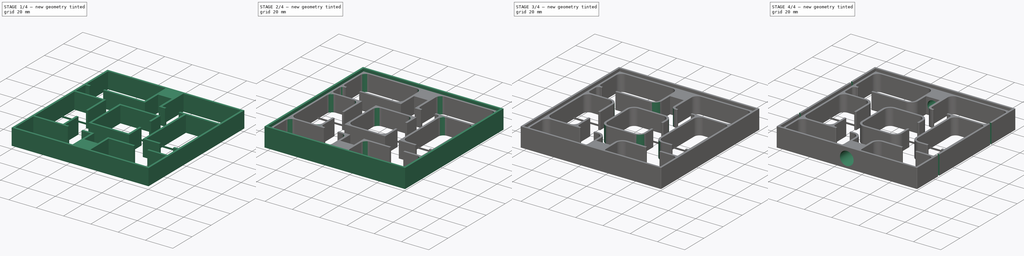
[diagram: build sequence overview — one tinted view per stage of 4, left to right]
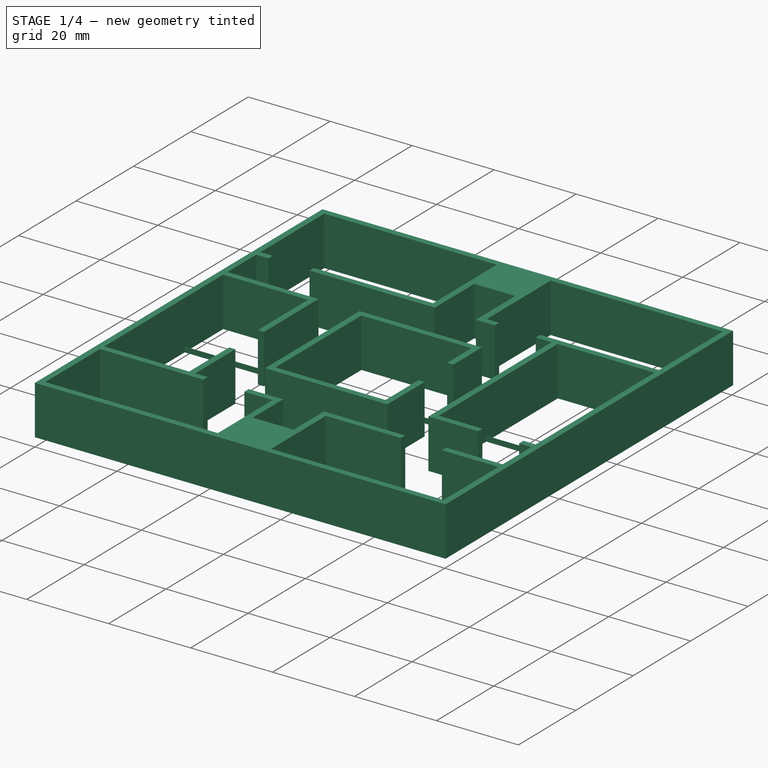
[diagram: stage 1 of 4 — iso view after this stage's code; geometry added in this stage tinted green]
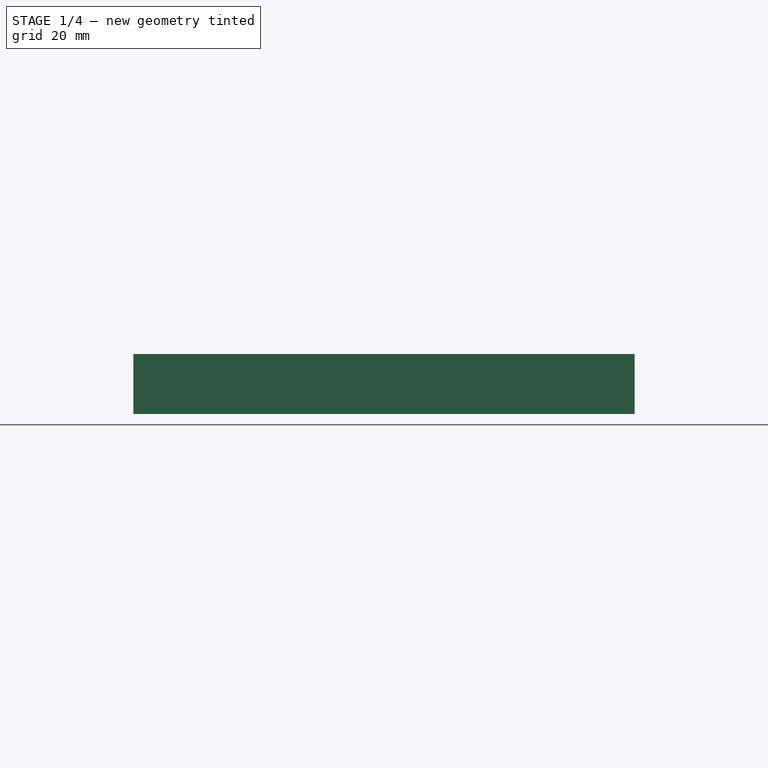
[diagram: stage 1 of 4 — front view after this stage's code; geometry added in this stage tinted green]
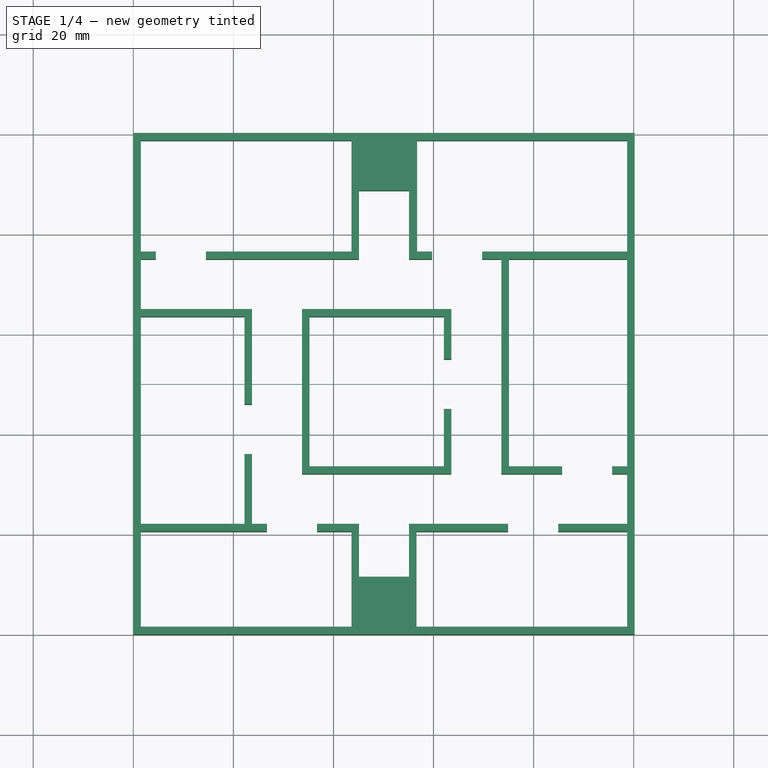
[diagram: stage 1 of 4 — top view after this stage's code; geometry added in this stage tinted green]
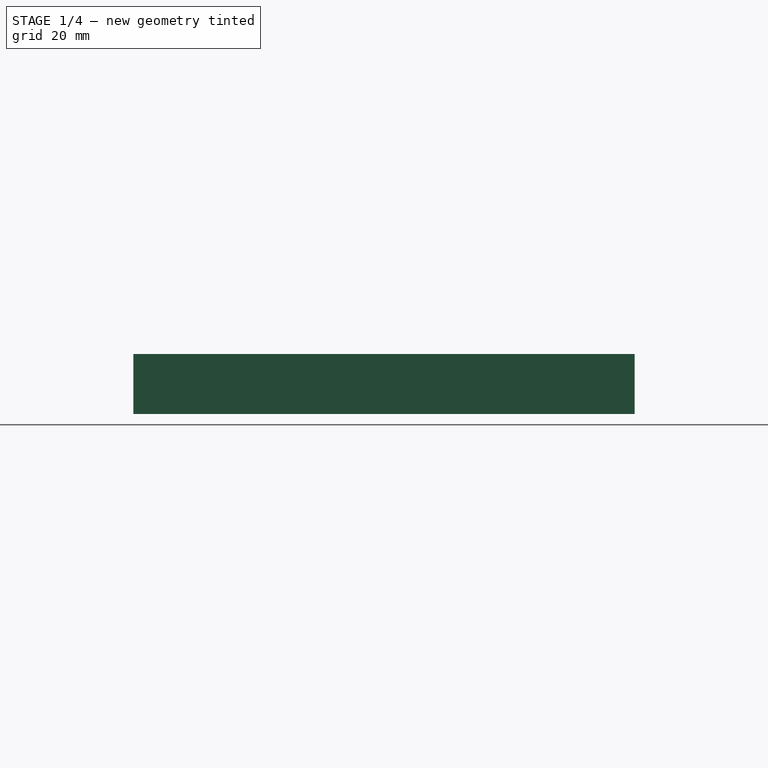
[diagram: stage 1 of 4 — right view after this stage's code; geometry added in this stage tinted green]
FCSTD DOCUMENT  (FreeCAD 0.18R13674 (Git))
Label: test3
License: All rights reserved
LicenseURL: http://en.wikipedia.org/wiki/All_rights_reserved
objects: Sketcher::SketchObject×7, PartDesign::Fillet×5, PartDesign::Pad×4, PartDesign::Hole×2, PartDesign::Pocket×1, PartDesign::Body×1
note: 27 computed .brp shape members not serialized (recipe doc carries the construction recipe); baked Part::Feature solids carry a one-line shape summary decoded from their .brp

FEATURE [Sketcher::SketchObject] Sketch  label="base"
  MapMode = 5
  Support = -> [XY_Plane]
  sketch-geometry (8):
    g0: LineSegment [constr] StartX=0 StartY=0 StartZ=0 EndX=100.2 EndY=0 EndZ=0
    g1: LineSegment [constr] StartX=100.2 StartY=0 StartZ=0 EndX=100.2 EndY=100.2 EndZ=0
    g2: LineSegment [constr] StartX=100.2 StartY=100.2 StartZ=0 EndX=0 EndY=100.2 EndZ=0
    g3: LineSegment [constr] StartX=0 StartY=100.2 StartZ=0 EndX=0 EndY=0 EndZ=0
    g4: LineSegment StartX=0 StartY=50.15 StartZ=0 EndX=100.2 EndY=50.15 EndZ=0
    g5: LineSegment StartX=100.2 StartY=50.15 StartZ=0 EndX=100.2 EndY=50.05 EndZ=0
    g6: LineSegment StartX=100.2 StartY=50.05 StartZ=0 EndX=0 EndY=50.05 EndZ=0
    g7: LineSegment StartX=0 StartY=50.05 StartZ=0 EndX=0 EndY=50.15 EndZ=0
  constraints (23):
    c: Coincident(g0,g1)
    c: Coincident(g1,g2)
    c: Coincident(g2,g3)
    c: Coincident(g3,g0)
    c: Horizontal(g0)
    c: Horizontal(g2)
    c: Vertical(g1)
    c: Vertical(g3)
    c: Coincident(g0,g-1)
    c: Distance(g1) = 100.2
    c: Distance(g0) = 100.2
    c: Coincident(g4,g5)
    c: Coincident(g5,g6)
    c: Coincident(g6,g7)
    c: Coincident(g7,g4)
    c: Horizontal(g4)
    c: Horizontal(g6)
    c: Vertical(g5)
    c: Vertical(g7)
    c: PointOnObject(g4,g3)
    c: PointOnObject(g5,g1)
    c: Distance(g-1,g6) = 50.05
    c: Distance(g7) = 0.1
FEATURE [PartDesign::Pad] Pad  label="Base"
  Length = 1.25
  Length2 = 100
  Profile = -> Sketch
  Type = 0
FEATURE [Sketcher::SketchObject] Sketch001  label="chambers"
  ExternalGeometry = -> [Sketch]
  MapMode = 5
  Support = -> [XY_Plane]
  sketch-geometry (119):
    g0: LineSegment [constr] StartX=45.0996 StartY=74.9876 StartZ=0 EndX=98.7 EndY=74.9876 EndZ=0
    g1: LineSegment [constr] StartX=98.7 StartY=74.9876 StartZ=0 EndX=98.7 EndY=33.5565 EndZ=0
    g2: LineSegment [constr] StartX=58.9283 StartY=98.7 StartZ=0 EndX=98.7 EndY=98.7 EndZ=0
    g3: LineSegment [constr] StartX=98.7 StartY=98.7 StartZ=0 EndX=98.7 EndY=59.3012 EndZ=0
    g4: LineSegment [constr] StartX=50.0996 StartY=100 StartZ=0 EndX=50.0996 EndY=76.0527 EndZ=0
    g5: LineSegment StartX=0 StartY=0 StartZ=0 EndX=100.2 EndY=0 EndZ=0
    g6: LineSegment StartX=100.2 StartY=0 StartZ=0 EndX=100.2 EndY=100.2 EndZ=0
    g7: LineSegment StartX=100.2 StartY=100.2 StartZ=0 EndX=0 EndY=100.2 EndZ=0
    g8: LineSegment StartX=0 StartY=100.2 StartZ=0 EndX=0 EndY=0 EndZ=0
    g9: LineSegment [constr] StartX=0 StartY=1.5 StartZ=0 EndX=1.5 EndY=1.5 EndZ=0
    g10: LineSegment [constr] StartX=1.5 StartY=1.5 StartZ=0 EndX=1.5 EndY=0 EndZ=0
    g11: LineSegment [constr] StartX=98.7 StartY=100.2 StartZ=0 EndX=98.7 EndY=98.7 EndZ=0
    g12: LineSegment [constr] StartX=98.7 StartY=98.7 StartZ=0 EndX=100.2 EndY=98.7 EndZ=0
    g13: LineSegment [constr] StartX=1.5 StartY=1.5 StartZ=0 EndX=98.7 EndY=1.5 EndZ=0
    g14: LineSegment [constr] StartX=98.7 StartY=1.5 StartZ=0 EndX=98.7 EndY=98.7 EndZ=0
    g15: LineSegment [constr] StartX=98.7 StartY=98.7 StartZ=0 EndX=1.5 EndY=98.7 EndZ=0
    g16: LineSegment [constr] StartX=1.5 StartY=98.7 StartZ=0 EndX=1.5 EndY=1.5 EndZ=0
    g17: LineSegment [constr] StartX=50.1 StartY=0 StartZ=0 EndX=50.1 EndY=23.7426 EndZ=0
    g18: LineSegment [constr] StartX=98.7 StartY=1.5 StartZ=0 EndX=56.5996 EndY=1.5 EndZ=0
    g19: LineSegment [constr] StartX=56.5996 StartY=1.5 StartZ=0 EndX=56.5996 EndY=20.5565 EndZ=0
    g20: LineSegment [constr] StartX=56.5996 StartY=20.5565 StartZ=0 EndX=98.7 EndY=20.5565 EndZ=0
    g21: LineSegment [constr] StartX=98.7 StartY=20.5565 StartZ=0 EndX=98.7 EndY=1.5 EndZ=0
    g22: LineSegment [constr] StartX=1.5 StartY=1.5 StartZ=0 EndX=43.5996 EndY=1.5 EndZ=0
    g23: LineSegment [constr] StartX=43.5996 StartY=1.5 StartZ=0 EndX=43.5996 EndY=20.5565 EndZ=0
    g24: LineSegment [constr] StartX=43.5996 StartY=20.5565 StartZ=0 EndX=1.5 EndY=20.5565 EndZ=0
    g25: LineSegment [constr] StartX=1.5 StartY=20.5565 StartZ=0 EndX=1.5 EndY=1.5 EndZ=0
    g26: LineSegment [constr] StartX=26.7071 StartY=20.5565 StartZ=0 EndX=36.7071 EndY=20.5565 EndZ=0
    g27: LineSegment [constr] StartX=6.5 StartY=22.0565 StartZ=0 EndX=6.5 EndY=20.5565 EndZ=0
    g28: LineSegment StartX=1.5 StartY=98.7 StartZ=0 EndX=43.5996 EndY=98.7 EndZ=0
    g29: LineSegment StartX=43.5996 StartY=98.7 StartZ=0 EndX=43.5996 EndY=76.4876 EndZ=0
    g30: LineSegment StartX=1.5 StartY=76.4876 StartZ=0 EndX=1.5 EndY=98.7 EndZ=0
    g31: LineSegment [constr] StartX=50.0996 StartY=98.7 StartZ=0 EndX=45.0996 EndY=98.7 EndZ=0
    g32: LineSegment [constr] StartX=50.0996 StartY=98.7 StartZ=0 EndX=55.0996 EndY=98.7 EndZ=0
    g33: LineSegment [constr] StartX=45.0996 StartY=98.7 StartZ=0 EndX=45.0996 EndY=88.7 EndZ=0
    g34: LineSegment StartX=45.0996 StartY=88.7 StartZ=0 EndX=55.0996 EndY=88.7 EndZ=0
    g35: LineSegment [constr] StartX=55.0996 StartY=88.7 StartZ=0 EndX=55.0996 EndY=98.7 EndZ=0
    g36: LineSegment [constr] StartX=45.0996 StartY=95.9558 StartZ=0 EndX=43.5996 EndY=95.9558 EndZ=0
    g37: LineSegment StartX=45.0996 StartY=88.7 StartZ=0 EndX=45.0996 EndY=74.9876 EndZ=0
    g38: LineSegment StartX=45.0996 StartY=74.9876 StartZ=0 EndX=14.5 EndY=74.9876 EndZ=0
    g39: LineSegment [constr] StartX=43.5996 StartY=76.4876 StartZ=0 EndX=43.5996 EndY=74.9876 EndZ=0
    g40: LineSegment StartX=1.5 StartY=76.4876 StartZ=0 EndX=4.5 EndY=76.4876 EndZ=0
    g41: LineSegment [constr] StartX=4.5 StartY=76.4876 StartZ=0 EndX=14.5 EndY=76.4876 EndZ=0
    g42: LineSegment StartX=43.5996 StartY=76.4876 StartZ=0 EndX=14.5 EndY=76.4876 EndZ=0
    g43: LineSegment StartX=14.5 StartY=74.9876 StartZ=0 EndX=14.5 EndY=76.4876 EndZ=0
    g44: LineSegment StartX=1.5 StartY=64.9876 StartZ=0 EndX=23.7071 EndY=64.9876 EndZ=0
    g45: LineSegment [constr] StartX=23.7071 StartY=64.9876 StartZ=0 EndX=33.7071 EndY=64.9876 EndZ=0
    g46: LineSegment [constr] StartX=14.5 StartY=74.9876 StartZ=0 EndX=14.5 EndY=64.9876 EndZ=0
    g47: LineSegment StartX=98.7 StartY=98.7 StartZ=0 EndX=56.7128 EndY=98.7 EndZ=0
    g48: LineSegment [constr] StartX=56.7128 StartY=98.7 StartZ=0 EndX=56.7128 EndY=76.4876 EndZ=0
    g49: LineSegment StartX=98.7 StartY=76.4876 StartZ=0 EndX=98.7 EndY=98.7 EndZ=0
    g50: LineSegment StartX=55.0996 StartY=88.7 StartZ=0 EndX=55.0996 EndY=74.9876 EndZ=0
    g51: LineSegment StartX=56.7128 StartY=76.4876 StartZ=0 EndX=56.7128 EndY=98.7 EndZ=0
    g52: LineSegment [constr] StartX=14.5 StartY=64.9876 StartZ=0 EndX=14.5 EndY=63.4876 EndZ=0
    g53: LineSegment StartX=22.2071 StartY=63.4876 StartZ=0 EndX=1.5 EndY=63.4876 EndZ=0
    g54: LineSegment StartX=1.5 StartY=63.4876 StartZ=0 EndX=1.5 EndY=22.0565 EndZ=0
    g55: LineSegment StartX=1.5 StartY=22.0565 StartZ=0 EndX=22.2071 EndY=22.0565 EndZ=0
    g56: LineSegment [constr] StartX=22.2071 StartY=22.0565 StartZ=0 EndX=22.2071 EndY=63.4876 EndZ=0
    g57: LineSegment StartX=23.7071 StartY=64.9876 StartZ=0 EndX=23.7071 EndY=45.9907 EndZ=0
    g58: LineSegment StartX=22.2071 StartY=63.4876 StartZ=0 EndX=22.2071 EndY=45.9907 EndZ=0
    g59: LineSegment [constr] StartX=22.2071 StartY=45.9907 StartZ=0 EndX=22.2071 EndY=35.9907 EndZ=0
    g60: LineSegment StartX=22.2071 StartY=35.9907 StartZ=0 EndX=22.2071 EndY=22.0565 EndZ=0
    g61: LineSegment StartX=23.7071 StartY=45.9907 StartZ=0 EndX=22.2071 EndY=45.9907 EndZ=0
    g62: LineSegment StartX=22.2071 StartY=35.9907 StartZ=0 EndX=23.7071 EndY=35.9907 EndZ=0
    g63: LineSegment StartX=1.5 StartY=20.5565 StartZ=0 EndX=26.7071 EndY=20.5565 EndZ=0
    g64: LineSegment StartX=1.5 StartY=20.5565 StartZ=0 EndX=1.5 EndY=1.5 EndZ=0
    g65: LineSegment StartX=43.5996 StartY=1.5 StartZ=0 EndX=1.5 EndY=1.5 EndZ=0
    g66: LineSegment StartX=43.5996 StartY=1.5 StartZ=0 EndX=43.5996 EndY=20.5565 EndZ=0
    g67: LineSegment StartX=36.7071 StartY=20.5565 StartZ=0 EndX=43.5996 EndY=20.5565 EndZ=0
    g68: LineSegment StartX=36.7071 StartY=20.5565 StartZ=0 EndX=36.7071 EndY=22.0565 EndZ=0
    g69: LineSegment StartX=36.7071 StartY=22.0565 StartZ=0 EndX=45.0996 EndY=22.0565 EndZ=0
    g70: LineSegment StartX=45.0996 StartY=11.5 StartZ=0 EndX=45.0996 EndY=22.0565 EndZ=0
    g71: LineSegment [constr] StartX=45.0996 StartY=11.5 StartZ=0 EndX=45.0996 EndY=1.5 EndZ=0
    g72: LineSegment [constr] StartX=45.0996 StartY=11.5 StartZ=0 EndX=43.5996 EndY=11.5 EndZ=0
    g73: LineSegment StartX=45.0996 StartY=11.5 StartZ=0 EndX=55.0996 EndY=11.5 EndZ=0
    g74: LineSegment [constr] StartX=55.0996 StartY=11.5 StartZ=0 EndX=56.5996 EndY=11.5 EndZ=0
    g75: LineSegment StartX=55.0996 StartY=22.0565 StartZ=0 EndX=55.0996 EndY=11.5 EndZ=0
    g76: LineSegment StartX=74.9196 StartY=22.0565 StartZ=0 EndX=55.0996 EndY=22.0565 EndZ=0
    g77: LineSegment [constr] StartX=56.5996 StartY=20.5565 StartZ=0 EndX=56.5996 EndY=22.0565 EndZ=0
    g78: LineSegment StartX=56.5996 StartY=1.5 StartZ=0 EndX=56.5996 EndY=20.5565 EndZ=0
    g79: LineSegment StartX=56.5996 StartY=20.5565 StartZ=0 EndX=74.9196 EndY=20.5565 EndZ=0
    g80: LineSegment [constr] StartX=74.9196 StartY=20.5565 StartZ=0 EndX=84.9196 EndY=20.5565 EndZ=0
    g81: LineSegment StartX=84.9196 StartY=20.5565 StartZ=0 EndX=98.7 EndY=20.5565 EndZ=0
    g82: LineSegment StartX=74.9196 StartY=22.0565 StartZ=0 EndX=74.9196 EndY=20.5565 EndZ=0
    g83: LineSegment StartX=84.9196 StartY=22.0565 StartZ=0 EndX=84.9196 EndY=20.5565 EndZ=0
    g84: LineSegment StartX=98.7 StartY=33.5565 StartZ=0 EndX=95.7 EndY=33.5565 EndZ=0
    g85: LineSegment StartX=98.7 StartY=22.0565 StartZ=0 EndX=84.9196 EndY=22.0565 EndZ=0
    g86: LineSegment [constr] StartX=33.7071 StartY=22.0565 StartZ=0 EndX=33.7071 EndY=32.0565 EndZ=0
    g87: LineSegment StartX=85.7 StartY=33.5565 StartZ=0 EndX=85.7 EndY=32.0565 EndZ=0
    g88: LineSegment StartX=98.7 StartY=33.5565 StartZ=0 EndX=98.7 EndY=74.9876 EndZ=0
    g89: LineSegment [constr] StartX=85.7 StartY=32.0565 StartZ=0 EndX=95.7 EndY=32.0565 EndZ=0
    g90: LineSegment StartX=56.5996 StartY=1.5 StartZ=0 EndX=98.7 EndY=1.5 EndZ=0
    g91: LineSegment StartX=98.7 StartY=1.5 StartZ=0 EndX=98.7 EndY=20.5565 EndZ=0
    g92: LineSegment [constr] StartX=63.5711 StartY=32.0565 StartZ=0 EndX=73.5711 EndY=32.0565 EndZ=0
    g93: LineSegment [constr] StartX=33.7071 StartY=64.9876 StartZ=0 EndX=63.5711 EndY=64.9876 EndZ=0
    g94: LineSegment [constr] StartX=63.5711 StartY=64.9876 StartZ=0 EndX=63.5711 EndY=32.0565 EndZ=0
    g95: LineSegment [constr] StartX=63.5711 StartY=32.0565 StartZ=0 EndX=33.7071 EndY=32.0565 EndZ=0
    g96: LineSegment StartX=73.5711 StartY=32.0565 StartZ=0 EndX=85.7 EndY=32.0565 EndZ=0
    g97: LineSegment StartX=73.5711 StartY=74.9876 StartZ=0 EndX=73.5711 EndY=32.0565 EndZ=0
    g98: LineSegment StartX=75.0711 StartY=74.9876 StartZ=0 EndX=75.0711 EndY=33.5565 EndZ=0
    g99: LineSegment StartX=75.0711 StartY=33.5565 StartZ=0 EndX=85.7 EndY=33.5565 EndZ=0
    g100: LineSegment StartX=75.0711 StartY=74.9876 StartZ=0 EndX=98.7 EndY=74.9876 EndZ=0
    g101: LineSegment [constr] StartX=73.5711 StartY=53.2611 StartZ=0 EndX=75.0711 EndY=53.2611 EndZ=0
    g102: LineSegment [constr] StartX=33.7071 StartY=64.9876 StartZ=0 EndX=33.7071 EndY=32.0565 EndZ=0
    g103: LineSegment StartX=4.5 StartY=76.4876 StartZ=0 EndX=4.5 EndY=74.9876 EndZ=0
    g104: LineSegment StartX=4.5 StartY=74.9876 StartZ=0 EndX=1.5 EndY=74.9876 EndZ=0
    g105: LineSegment StartX=1.5 StartY=74.9876 StartZ=0 EndX=1.5 EndY=64.9876 EndZ=0
    g106: LineSegment StartX=95.7 StartY=32.0565 StartZ=0 EndX=95.7 EndY=33.5565 EndZ=0
    g107: LineSegment StartX=95.7 StartY=32.0565 StartZ=0 EndX=98.7 EndY=32.0565 EndZ=0
    g108: LineSegment StartX=98.7 StartY=32.0565 StartZ=0 EndX=98.7 EndY=22.0565 EndZ=0
    g109: LineSegment StartX=23.7071 StartY=35.9907 StartZ=0 EndX=23.7071 EndY=22.0565 EndZ=0
    g110: LineSegment StartX=23.7071 StartY=22.0565 StartZ=0 EndX=26.7071 EndY=22.0565 EndZ=0
    g111: LineSegment StartX=26.7071 StartY=22.0565 StartZ=0 EndX=26.7071 EndY=20.5565 EndZ=0
    g112: LineSegment StartX=98.7 StartY=76.4876 StartZ=0 EndX=69.7128 EndY=76.4876 EndZ=0
    g113: LineSegment StartX=55.0996 StartY=74.9876 StartZ=0 EndX=59.7128 EndY=74.9876 EndZ=0
    g114: LineSegment [constr] StartX=59.7128 StartY=74.9876 StartZ=0 EndX=69.7128 EndY=74.9876 EndZ=0
    g115: LineSegment StartX=69.7128 StartY=74.9876 StartZ=0 EndX=73.5711 EndY=74.9876 EndZ=0
    g116: LineSegment StartX=69.7128 StartY=74.9876 StartZ=0 EndX=69.7128 EndY=76.4876 EndZ=0
    g117: LineSegment StartX=56.7128 StartY=76.4876 StartZ=0 EndX=59.7128 EndY=76.4876 EndZ=0
    g118: LineSegment StartX=59.7128 StartY=76.4876 StartZ=0 EndX=59.7128 EndY=74.9876 EndZ=0
  constraints (328):
    c: Coincident(g0,g1)
    c: Horizontal(g0)
    c: Vertical(g1)
    c: Coincident(g2,g3)
    c: Horizontal(g2)
    c: Vertical(g3)
    c: Vertical(g4)
    c: Coincident(g5,g6)
    c: Coincident(g6,g7)
    c: Coincident(g7,g8)
    c: Coincident(g8,g5)
    c: Horizontal(g5)
    c: Horizontal(g7)
    c: Vertical(g6)
    c: Vertical(g8)
    c: Coincident(g5,g-1)
    c: PointOnObject(g9,g8)
    c: Horizontal(g9)
    c: Coincident(g10,g9)
    c: PointOnObject(g10,g5)
    c: Vertical(g10)
    c: Equal(g9,g10)
    c: PointOnObject(g11,g7)
    c: Vertical(g11)
    c: Coincident(g12,g11)
    c: PointOnObject(g12,g6)
    c: Horizontal(g12)
    c: Equal(g12,g11)
    c: Equal(g12,g10)
    c: Distance(g9) = 1.5
    c: Coincident(g13,g14)
    c: Coincident(g14,g15)
    c: Coincident(g15,g16)
    c: Horizontal(g13)
    c: Horizontal(g15)
    c: Vertical(g14)
    c: Vertical(g16)
    c: Coincident(g13,g9)
    c: Coincident(g14,g11)
    c: Distance(g4,g7) = 50.1
    c: Coincident(g2,g11)
    c: PointOnObject(g0,g14)
    c: Vertical(g17)
    c: PointOnObject(g17,g5)
    c: Distance(g-1,g17) = 50.1
    c: Coincident(g18,g19)
    c: Coincident(g19,g20)
    c: Coincident(g20,g21)
    c: Coincident(g21,g18)
    c: Horizontal(g18)
    c: Horizontal(g20)
    c: Vertical(g19)
    c: Vertical(g21)
    c: Coincident(g18,g13)
    c: Coincident(g22,g23)
    c: Coincident(g23,g24)
    c: Coincident(g24,g25)
    c: Coincident(g25,g22)
    c: Horizontal(g22)
    c: Horizontal(g24)
    c: Vertical(g23)
    c: Vertical(g25)
    c: Coincident(g22,g9)
    c: PointOnObject(g24,g16)
    c: Horizontal(g26)
    c: Coincident(g28,g29)
    c: Coincident(g30,g28)
    c: Horizontal(g28)
    c: Vertical(g29)
    c: Vertical(g30)
    c: Coincident(g28,g15)
    c: PointOnObject(g31,g4)
    c: Horizontal(g31)
    c: Distance(g31) = 5
    c: Coincident(g32,g31)
    c: Horizontal(g32)
    c: Equal(g32,g31)
    c: PointOnObject(g31,g15)
    c: Coincident(g33,g31)
    c: Vertical(g33)
    c: Coincident(g34,g33)
    c: Horizontal(g34)
    c: Coincident(g35,g34)
    c: Coincident(g35,g32)
    c: Vertical(g35)
    c: Distance(g33) = 10
    c: PointOnObject(g36,g29)
    c: Horizontal(g36)
    c: Equal(g36,g11)
    c: PointOnObject(g36,g33)
    c: Coincident(g37,g33)
    c: Vertical(g37)
    c: Coincident(g38,g37)
    c: Horizontal(g38)
    c: Coincident(g39,g29)
    c: Vertical(g39)
    c: PointOnObject(g39,g38)
    c: Equal(g36,g39)
    c: Coincident(g40,g30)
    c: Horizontal(g40)
    c: Coincident(g41,g40)
    c: Horizontal(g41)
    c: Equal(g41,g34)
    c: Coincident(g42,g29)
    c: Coincident(g42,g41)
    c: Horizontal(g42)
    c: Coincident(g43,g38)
    c: Coincident(g43,g41)
    c: Vertical(g43)
    c: Horizontal(g44)
    c: Coincident(g45,g44)
    c: Horizontal(g45)
    c: Coincident(g46,g38)
    c: PointOnObject(g46,g45)
    c: Vertical(g46)
    c: Equal(g46,g34)
    c: Coincident(g47,g48)
    c: Coincident(g49,g47)
    c: Horizontal(g47)
    c: Vertical(g48)
    c: Vertical(g49)
    c: Coincident(g47,g2)
    c: PointOnObject(g50,g35)
    c: PointOnObject(g51,g48)
    c: Coincident(g50,g34)
    c: Coincident(g51,g47)
    c: Equal(g45,g34)
    c: Equal(g52,g43)
    c: Vertical(g52)
    c: Coincident(g53,g54)
    c: Coincident(g54,g55)
    c: Coincident(g55,g56)
    c: Coincident(g56,g53)
    c: Horizontal(g53)
    c: Horizontal(g55)
    c: Vertical(g54)
    c: Vertical(g56)
    c: PointOnObject(g54,g16)
    c: PointOnObject(g52,g53)
    c: Coincident(g57,g44)
    c: Vertical(g57)
    c: Coincident(g58,g53)
    c: Coincident(g60,g59)
    c: Coincident(g60,g55)
    c: Equal(g59,g45)
    c: Coincident(g59,g58)
    c: Vertical(g58)
    c: Vertical(g60)
    c: Coincident(g61,g57)
    c: Coincident(g61,g58)
    c: Horizontal(g61)
    c: Equal(g52,g61)
    c: Coincident(g62,g59)
    c: Horizontal(g62)
    c: Vertical(g62,g57)
    c: PointOnObject(g27,g24)
    c: PointOnObject(g27,g55)
    c: Vertical(g27)
    c: Equal(g62,g27)
    c: Coincident(g63,g24)
    c: Horizontal(g63)
    c: Coincident(g64,g24)
    c: Equal(g45,g26)
    c: Coincident(g65,g22)
    c: Coincident(g65,g64)
    c: Coincident(g64,g9)
    c: Coincident(g66,g22)
    c: Coincident(g67,g26)
    c: Coincident(g67,g66)
    c: Coincident(g66,g23)
    c: Coincident(g68,g26)
    c: Vertical(g37,g69)
    c: Horizontal(g69)
    c: Vertical(g68)
    c: Vertical(g70)
    c: Coincident(g71,g70)
    c: Vertical(g71)
    c: Coincident(g72,g70)
    c: Horizontal(g72)
    c: Equal(g72,g68)
    c: PointOnObject(g72,g66)
    c: Equal(g39,g72)
    c: Coincident(g70,g69)
    c: PointOnObject(g71,g13)
    c: Equal(g71,g33)
    c: Coincident(g73,g70)
    c: Equal(g73,g34)
    c: Horizontal(g73)
    c: Coincident(g74,g73)
    c: PointOnObject(g74,g19)
    c: Horizontal(g74)
    c: Coincident(g75,g73)
    c: Horizontal(g76)
    c: Coincident(g76,g75)
    c: Vertical(g75)
    c: PointOnObject(g77,g76)
    c: Coincident(g77,g19)
    c: Vertical(g77)
    c: Equal(g74,g77)
    c: Horizontal(g69,g75)
    c: Coincident(g78,g18)
    c: Coincident(g79,g78)
    c: Horizontal(g80)
    c: Horizontal(g81)
    c: Coincident(g81,g20)
    c: Equal(g80,g73)
    c: Coincident(g80,g81)
    c: Coincident(g79,g80)
    c: Coincident(g78,g19)
    c: Coincident(g82,g76)
    c: Coincident(g82,g79)
    c: Coincident(g83,g80)
    c: Coincident(g84,g1)
    c: Coincident(g85,g83)
    c: Vertical(g82)
    c: Vertical(g83)
    c: Equal(g83,g82)
    c: Horizontal(g85)
    c: Equal(g86,g45)
    c: Vertical(g86)
    c: Vertical(g87)
    c: Equal(g87,g83)
    c: Coincident(g88,g1)
    c: Coincident(g88,g0)
    c: Coincident(g89,g87)
    c: Horizontal(g89)
    c: Coincident(g90,g18)
    c: Coincident(g91,g90)
    c: Coincident(g91,g20)
    c: Coincident(g90,g13)
    c: Equal(g92,g89)
    c: Horizontal(g93)
    c: Coincident(g93,g45)
    c: Vertical(g94)
    c: Coincident(g94,g93)
    c: Horizontal(g95)
    c: Coincident(g95,g94)
    c: Coincident(g95,g86)
    c: Horizontal(g96)
    c: Coincident(g87,g96)
    c: Horizontal(g94,g96)
    c: PointOnObject(g97,g0)
    c: Vertical(g97)
    c: PointOnObject(g92,g94)
    c: Horizontal(g50,g37)
    c: Vertical(g98)
    c: Coincident(g99,g98)
    c: Coincident(g99,g87)
    c: Coincident(g100,g98)
    c: Coincident(g100,g0)
    c: PointOnObject(g101,g97)
    c: PointOnObject(g101,g98)
    c: Horizontal(g101)
    c: Equal(g101,g87)
    c: PointOnObject(g98,g0)
    c: Coincident(g96,g97)
    c: Coincident(g102,g45)
    c: Vertical(g102)
    c: Coincident(g102,g86)
    c: Horizontal(g99)
    c: Horizontal(g87,g84)
    c: Horizontal(g84)
    c: Coincident(g92,g94)
    c: Horizontal(g92)
    c: Coincident(g92,g96)
    c: Equal(g73,g92)
    c: Distance(g40) = 3
    c: Equal(g84,g40)
    c: Distance(g100) = 23.6289
    c: Distance(g55) = 20.7071
    c: Coincident(g52,g46)
    c: PointOnObject(g44,g16)
    c: Coincident(g40,g103)
    c: Coincident(g103,g104)
    c: Horizontal(g104)
    c: Coincident(g104,g105)
    c: Vertical(g105)
    c: Vertical(g103)
    c: Equal(g103,g43)
    c: Coincident(g105,g44)
    c: Coincident(g106,g89)
    c: Coincident(g106,g84)
    c: Vertical(g106)
    c: Coincident(g89,g107)
    c: Coincident(g107,g108)
    c: Coincident(g108,g85)
    c: Vertical(g108)
    c: Horizontal(g107)
    c: PointOnObject(g85,g14)
    c: Equal(g83,g87)
    c: Equal(g11,g106)
    c: PointOnObject(g86,g69)
    c: Coincident(g68,g69)
    c: PointOnObject(g26,g24)
    c: Coincident(g26,g63)
    c: Coincident(g62,g109)
    c: Vertical(g109)
    c: Coincident(g109,g110)
    c: Horizontal(g110)
    c: Coincident(g110,g111)
    c: Vertical(g111)
    c: Coincident(g111,g26)
    c: Horizontal(g109,g55)
    c: Equal(g110,g84)
    c: Coincident(g49,g112)
    c: Horizontal(g112)
    c: Coincident(g0,g37)
    c: Horizontal(g29,g112)
    c: Coincident(g50,g113)
    c: Coincident(g113,g114)
    c: Coincident(g114,g115)
    c: Equal(g114,g34)
    c: Coincident(g115,g97)
    c: PointOnObject(g114,g0)
    c: PointOnObject(g113,g0)
    c: Coincident(g116,g114)
    c: Coincident(g116,g112)
    c: Vertical(g116)
    c: Coincident(g48,g117)
    c: Horizontal(g117)
    c: Coincident(g117,g118)
    c: Vertical(g118)
    c: Coincident(g113,g118)
    c: Coincident(g48,g51)
    c: Equal(g117,g84)
    c: Horizontal(g117,g112)
    c: Distance(g7) = 100.2
    c: Distance(g6) = 100.2
FEATURE [PartDesign::Pad] Pad001  label="Outer chambers"
  BaseFeature = -> Pad
  Length = 12
  Length2 = 100
  Profile = -> Sketch001
  Type = 0
  expr: Length = 12
FEATURE [Sketcher::SketchObject] Sketch002
  ExternalGeometry = -> [Sketch001]
  MapMode = 5
  Support = -> [XY_Plane]
  sketch-geometry (18):
    g0: LineSegment StartX=33.7071 StartY=32.0565 StartZ=0 EndX=63.5711 EndY=32.0565 EndZ=0
    g1: LineSegment StartX=63.5711 StartY=32.0565 StartZ=0 EndX=63.5711 EndY=45.014 EndZ=0
    g2: LineSegment StartX=63.5711 StartY=45.014 StartZ=0 EndX=62.0711 EndY=45.014 EndZ=0
    g3: LineSegment StartX=62.0711 StartY=45.014 StartZ=0 EndX=62.0711 EndY=33.5565 EndZ=0
    g4: LineSegment StartX=62.0711 StartY=33.5565 StartZ=0 EndX=35.2071 EndY=33.5565 EndZ=0
    g5: LineSegment StartX=35.2071 StartY=33.5565 StartZ=0 EndX=35.2071 EndY=63.4876 EndZ=0
    g6: LineSegment StartX=35.2071 StartY=63.4876 StartZ=0 EndX=62.0711 EndY=63.4876 EndZ=0
    g7: LineSegment StartX=62.0711 StartY=63.4876 StartZ=0 EndX=62.0711 EndY=55.014 EndZ=0
    g8: LineSegment StartX=62.0711 StartY=55.014 StartZ=0 EndX=63.5711 EndY=55.014 EndZ=0
    g9: LineSegment StartX=63.5711 StartY=55.014 StartZ=0 EndX=63.5711 EndY=64.9876 EndZ=0
    g10: LineSegment StartX=63.5711 StartY=64.9876 StartZ=0 EndX=33.7071 EndY=64.9876 EndZ=0
    g11: LineSegment StartX=33.7071 StartY=64.9876 StartZ=0 EndX=33.7071 EndY=32.0565 EndZ=0
    g12: LineSegment [constr] StartX=35.2071 StartY=33.5565 StartZ=0 EndX=33.7071 EndY=33.5565 EndZ=0
    g13: LineSegment [constr] StartX=62.0711 StartY=33.5565 StartZ=0 EndX=62.0711 EndY=32.0565 EndZ=0
    g14: LineSegment [constr] StartX=62.0711 StartY=63.4876 StartZ=0 EndX=62.0711 EndY=64.9876 EndZ=0
    g15: LineSegment [constr] StartX=23.7071 StartY=64.9876 StartZ=0 EndX=33.7071 EndY=64.9876 EndZ=0
    g16: LineSegment [constr] StartX=63.5711 StartY=64.9876 StartZ=0 EndX=73.5711 EndY=64.9876 EndZ=0
    g17: LineSegment [constr] StartX=62.0711 StartY=55.014 StartZ=0 EndX=62.0711 EndY=45.014 EndZ=0
  constraints (53):
    c: Coincident(g5,g4)
    c: Horizontal(g4)
    c: Vertical(g5)
    c: Coincident(g6,g5)
    c: Horizontal(g6)
    c: Coincident(g6,g7)
    c: Coincident(g12,g4)
    c: Horizontal(g12)
    c: PointOnObject(g12,g11)
    c: Coincident(g11,g0)
    c: Horizontal(g0)
    c: Coincident(g3,g4)
    c: Vertical(g3)
    c: Coincident(g2,g3)
    c: Horizontal(g2)
    c: Coincident(g1,g2)
    c: Vertical(g1)
    c: Coincident(g0,g1)
    c: Vertical(g11)
    c: Coincident(g11,g10)
    c: Horizontal(g10)
    c: Coincident(g9,g10)
    c: Vertical(g9)
    c: Coincident(g14,g6)
    c: Vertical(g14)
    c: PointOnObject(g14,g10)
    c: Vertical(g7)
    c: Horizontal(g8)
    c: Coincident(g8,g7)
    c: Coincident(g8,g9)
    c: Equal(g8,g2)
    c: Vertical(g8,g1)
    c: Vertical(g13)
    c: Equal(g12,g2)
    c: Equal(g13,g2)
    c: Coincident(g3,g13)
    c: PointOnObject(g13,g0)
    c: Equal(g14,g8)
    c: Horizontal(g15)
    c: Coincident(g10,g15)
    c: Coincident(g16,g9)
    c: Horizontal(g16)
    c: Equal(g16,g15)
    c: Coincident(g17,g7)
    c: Vertical(g17)
    c: Equal(g17,g16)
    c: Coincident(g17,g2)
    c: PointOnObject(g16,g-10)
    c: Equal(g8,g-12)
    c: PointOnObject(g15,g-13)
    c: Equal(g15,g-6)
    c: Coincident(g15,g-13)
    c: Horizontal(g0,g-10)
FEATURE [PartDesign::Pad] Pad002  label="Central chamber"
  BaseFeature = -> Pad001
  Length = 12
  Length2 = 100
  Profile = -> Sketch002
  Type = 0
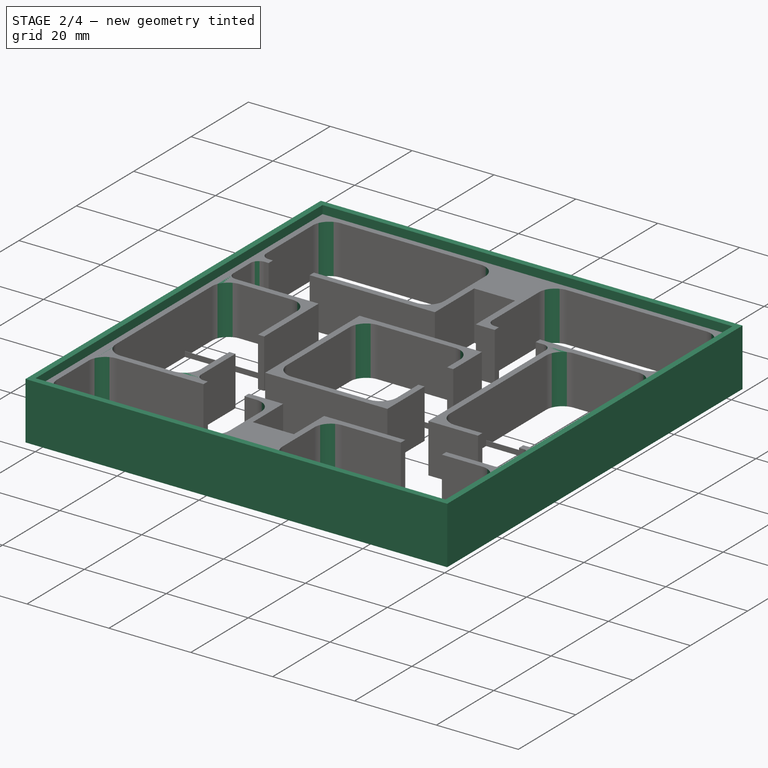
[diagram: stage 2 of 4 — iso view after this stage's code; geometry added in this stage tinted green]
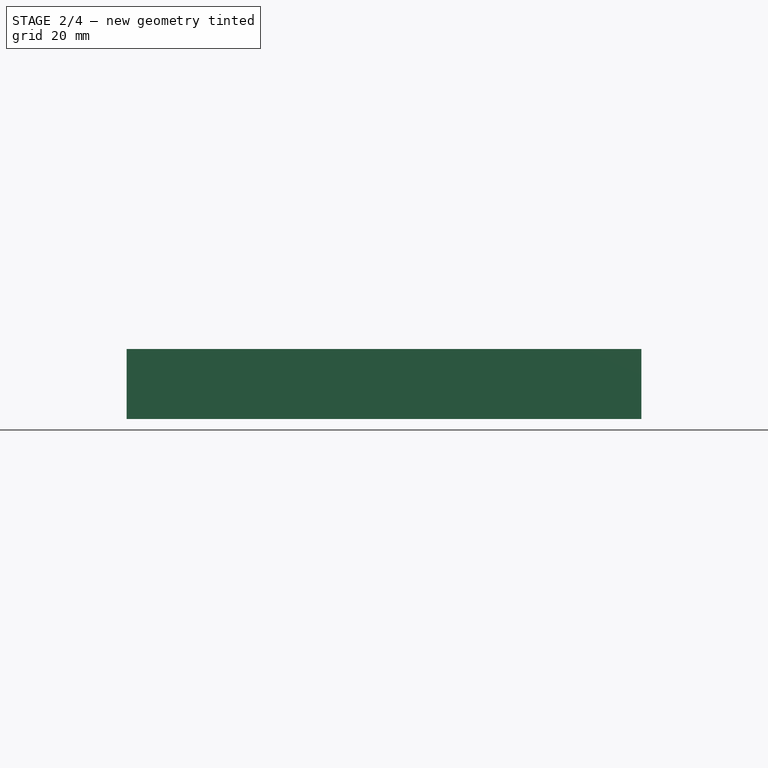
[diagram: stage 2 of 4 — front view after this stage's code; geometry added in this stage tinted green]
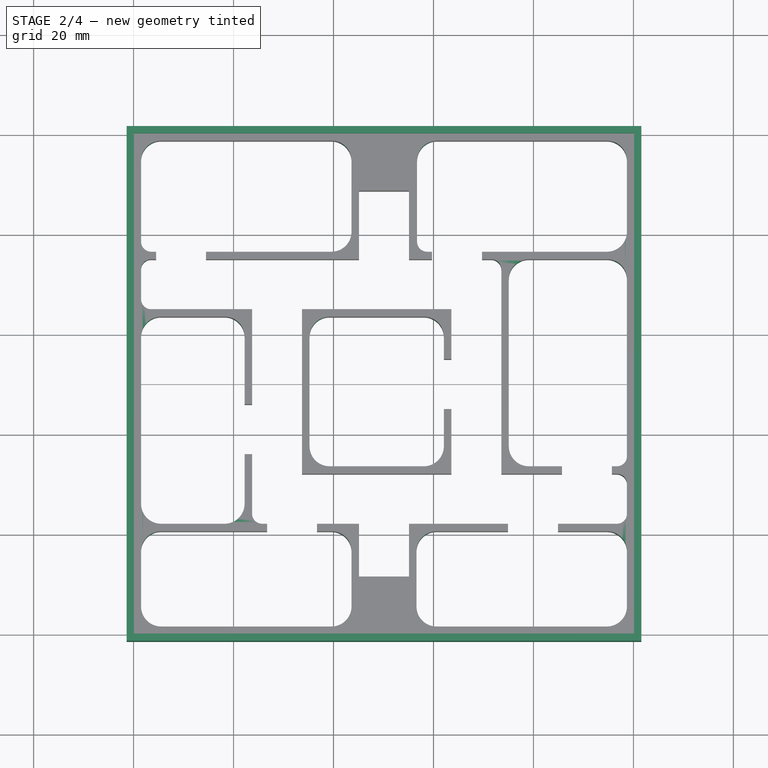
[diagram: stage 2 of 4 — top view after this stage's code; geometry added in this stage tinted green]
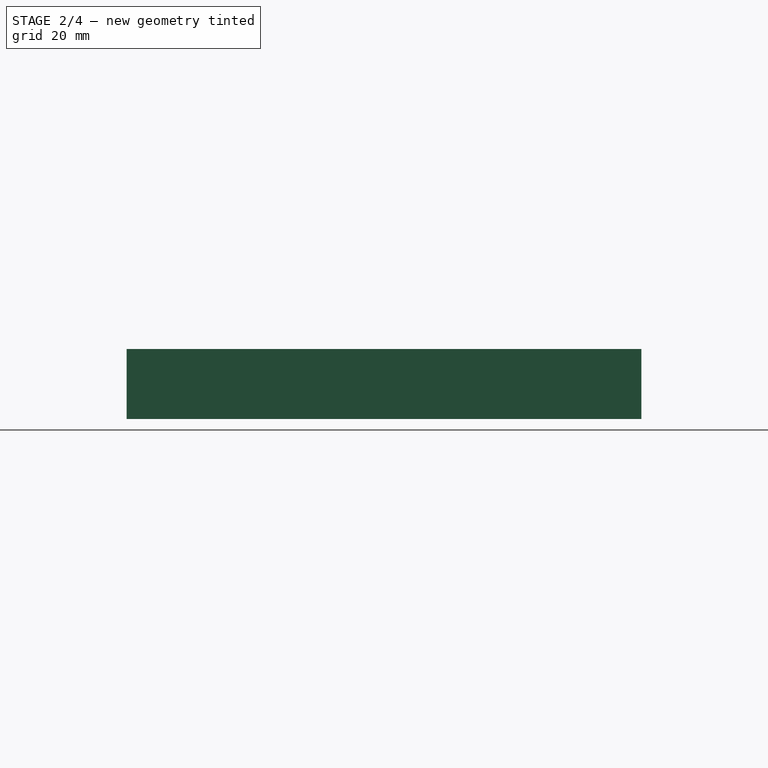
[diagram: stage 2 of 4 — right view after this stage's code; geometry added in this stage tinted green]
FEATURE [Sketcher::SketchObject] Sketch003
  ExternalGeometry = -> [Sketch,Sketch001]
  MapMode = 5
  Support = -> [XY_Plane]
  sketch-geometry (15):
    g0: LineSegment StartX=101.6 StartY=101.6 StartZ=0 EndX=-1.4 EndY=101.6 EndZ=0
    g1: LineSegment StartX=-1.4 StartY=101.6 StartZ=0 EndX=-1.4 EndY=-1.4 EndZ=0
    g2: LineSegment StartX=-1.4 StartY=-1.4 StartZ=0 EndX=101.6 EndY=-1.4 EndZ=0
    g3: LineSegment StartX=101.6 StartY=-1.4 StartZ=0 EndX=101.6 EndY=101.6 EndZ=0
    g4: LineSegment [constr] StartX=0 StartY=0 StartZ=0 EndX=100.2 EndY=100.2 EndZ=0
    g5: LineSegment [constr] StartX=100.2 StartY=100.2 StartZ=0 EndX=101.6 EndY=100.2 EndZ=0
    g6: LineSegment [constr] StartX=100.2 StartY=0 StartZ=0 EndX=100.2 EndY=-1.4 EndZ=0
    g7: LineSegment StartX=0.05 StartY=0.05 StartZ=0 EndX=100.15 EndY=0.05 EndZ=0
    g8: LineSegment StartX=100.15 StartY=0.05 StartZ=0 EndX=100.15 EndY=100.15 EndZ=0
    g9: LineSegment StartX=100.15 StartY=100.15 StartZ=0 EndX=0.05 EndY=100.15 EndZ=0
    g10: LineSegment StartX=0.05 StartY=100.15 StartZ=0 EndX=0.05 EndY=0.05 EndZ=0
    g11: LineSegment [constr] StartX=0.05 StartY=100.15 StartZ=0 EndX=0.05 EndY=100.2 EndZ=0
    g12: LineSegment [constr] StartX=0.05 StartY=100.15 StartZ=0 EndX=0 EndY=100.15 EndZ=0
    g13: LineSegment [constr] StartX=0 StartY=0 StartZ=0 EndX=0 EndY=-1.4 EndZ=0
    g14: LineSegment [constr] StartX=0.05 StartY=0.05 StartZ=0 EndX=0.05 EndY=-1.4 EndZ=0
  constraints (47):
    c: Coincident(g0,g1)
    c: Coincident(g1,g2)
    c: Coincident(g2,g3)
    c: Coincident(g3,g0)
    c: Horizontal(g0)
    c: Horizontal(g2)
    c: Vertical(g1)
    c: Vertical(g3)
    c: Coincident(g4,g-1)
    c: Coincident(g4,g-5)
    c: PointOnObject(g0,g4)
    c: PointOnObject(g1,g4)
    c: Coincident(g5,g4)
    c: PointOnObject(g5,g3)
    c: Horizontal(g5)
    c: Coincident(g6,g-5)
    c: PointOnObject(g6,g2)
    c: Vertical(g6)
    c: Equal(g5,g6)
    c: Distance(g3) = 103
    c: Coincident(g7,g8)
    c: Coincident(g8,g9)
    c: Coincident(g9,g10)
    c: Coincident(g10,g7)
    c: Horizontal(g7)
    c: Horizontal(g9)
    c: Vertical(g8)
    c: Vertical(g10)
    c: PointOnObject(g8,g4)
    c: PointOnObject(g7,g4)
    c: Coincident(g11,g9)
    c: PointOnObject(g11,g-4)
    c: Vertical(g11)
    c: Coincident(g12,g9)
    c: PointOnObject(g12,g-2)
    c: Horizontal(g12)
    c: Equal(g11,g12)
    c: Distance(g8) = 100.1
    c: Coincident(g13,g-1)
    c: PointOnObject(g13,g2)
    c: Vertical(g13)
    c: Distance(g13) = 1.4
    c: Distance(g7) = 100.1
    c: Coincident(g14,g7)
    c: Distance(g14) = 1.45
    c: PointOnObject(g14,g2)
    c: Vertical(g14)
FEATURE [PartDesign::Pad] Pad003  label="Rim"
  BaseFeature = -> Pad002
  Length = 14
  Length2 = 100
  Profile = -> Sketch003
  Type = 0
FEATURE [PartDesign::Fillet] Fillet  label="Large chamber corner"
  Base = -> Pad003 [Edge200,Edge187,Edge199,Edge167,Edge156,Edge321,Edge227,Edge239,Edge188,Edge169,Edge8,Edge303,Edge224,Edge236,Edge88,Edge238,Edge226,Edge332,Edge186,Edge198,Edge6,Edge225,Edge237,Edge305,Edge174]
  BaseFeature = -> Pad003
  Radius = 4
FEATURE [PartDesign::Fillet] Fillet001  label="Small chamber corner"
  Base = -> Fillet [Edge252,Edge257,Edge249,Edge275,Edge304,Edge201,Edge302,Edge228,Edge251]
  BaseFeature = -> Fillet
  Radius = 2
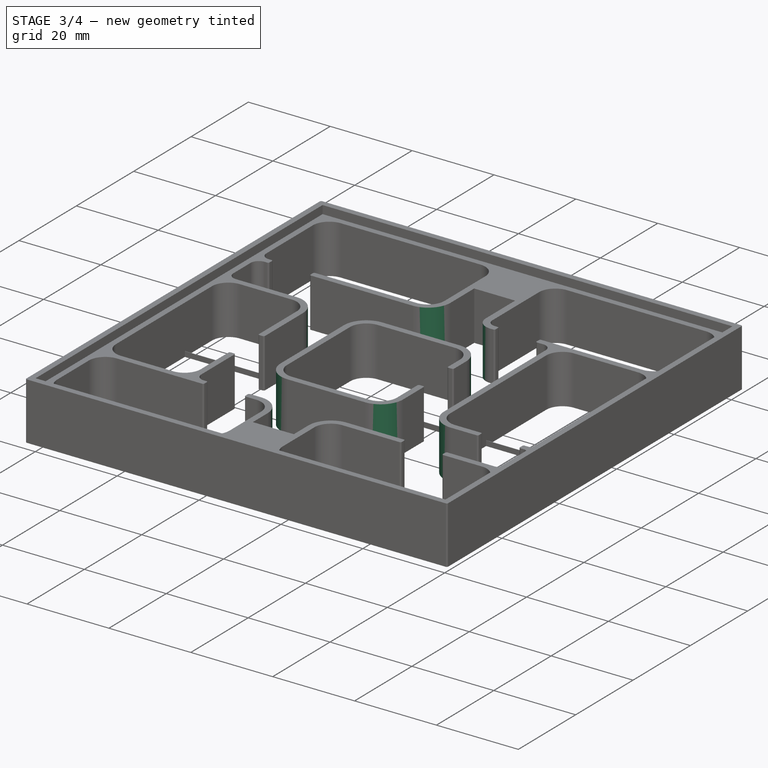
[diagram: stage 3 of 4 — iso view after this stage's code; geometry added in this stage tinted green]
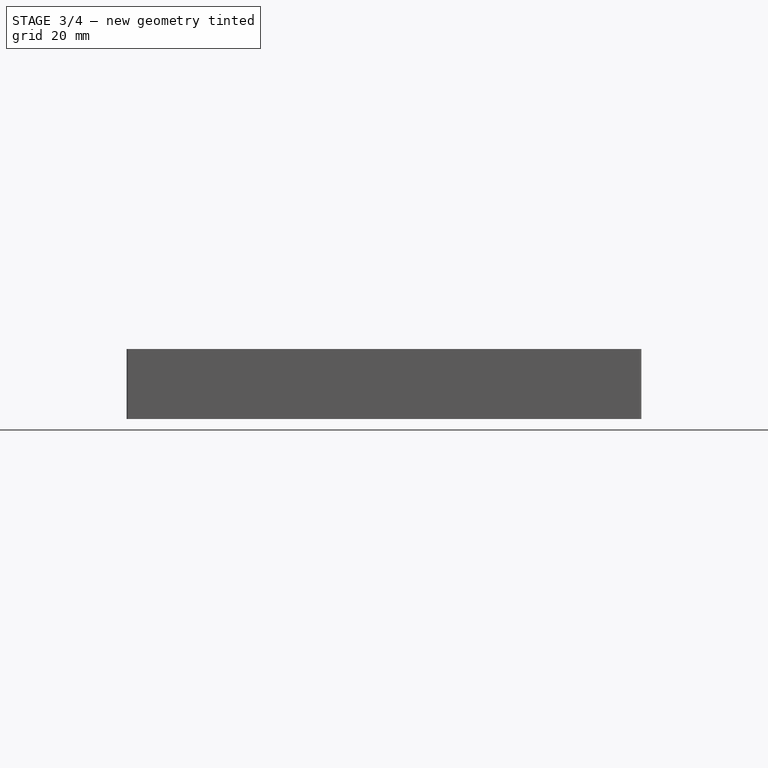
[diagram: stage 3 of 4 — front view after this stage's code; geometry added in this stage tinted green]
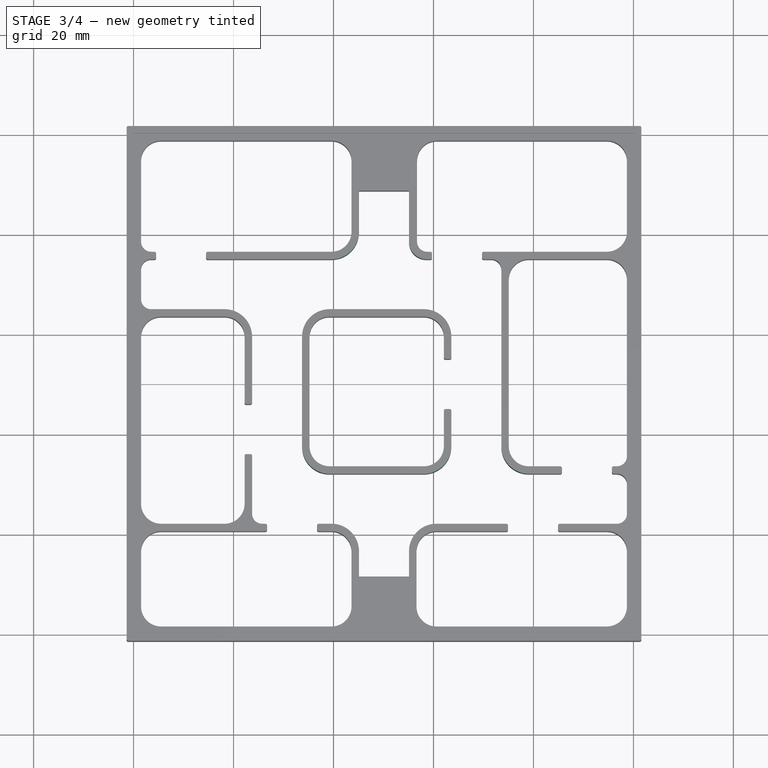
[diagram: stage 3 of 4 — top view after this stage's code; geometry added in this stage tinted green]
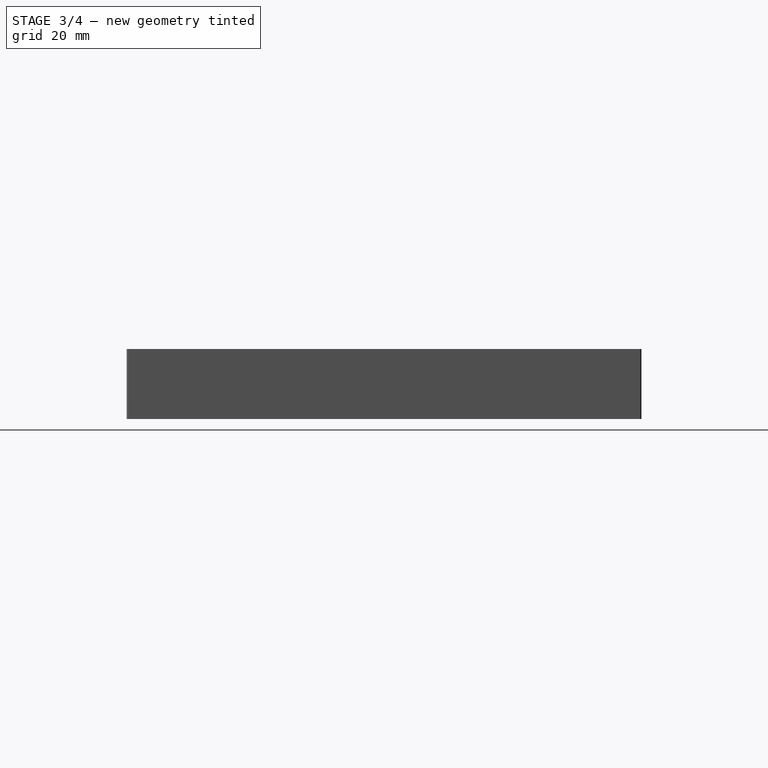
[diagram: stage 3 of 4 — right view after this stage's code; geometry added in this stage tinted green]
FEATURE [PartDesign::Fillet] Fillet002  label="Large chamber corner outer rad"
  Base = -> Fillet001 [Edge58,Edge398,Edge431,Edge145,Edge158,Edge356,Edge360,Edge432,Edge400]
  BaseFeature = -> Fillet001
  Radius = 5.5
FEATURE [PartDesign::Fillet] Fillet003  label="Small chamber corner outer rad"
  Base = -> Fillet002 [Edge65]
  BaseFeature = -> Fillet002
  Radius = 3.5
FEATURE [PartDesign::Fillet] Fillet004  label="Wall end"
  Base = -> Fillet003 [Edge64,Edge68,Edge114,Edge118,Edge366,Edge364,Edge379,Edge381,Edge347,Edge348,Edge108,Edge104,Edge78,Edge74,Edge349,Edge350,Edge359,Edge361,Edge386,Edge384,Edge356,Edge358,Edge463,Edge461,Edge181,Edge163,Edge469,Edge467,Edge411,Edge412,Edge416,Edge414]
  BaseFeature = -> Fillet003
  Radius = 0.35
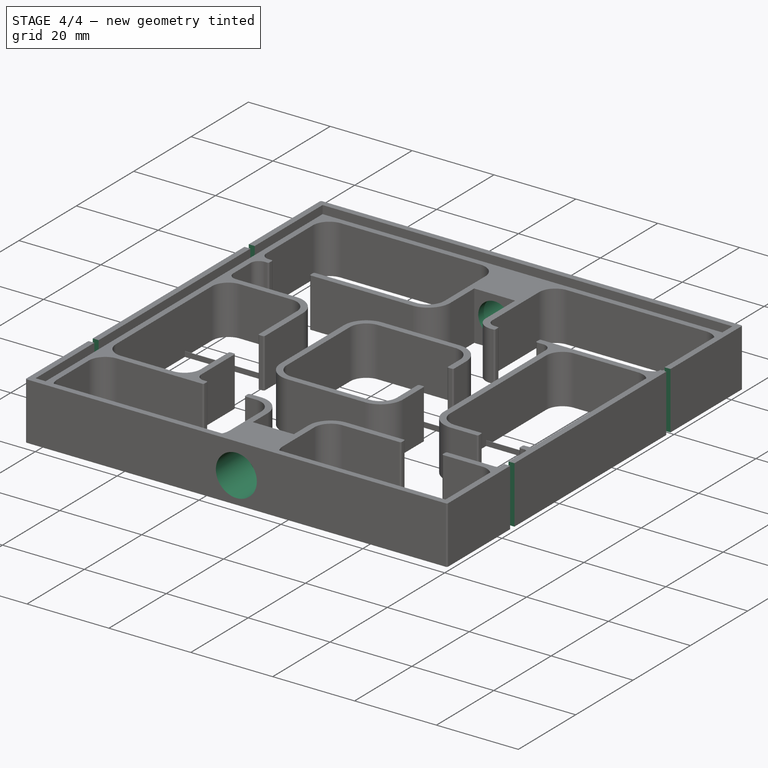
[diagram: stage 4 of 4 — iso view after this stage's code; geometry added in this stage tinted green]
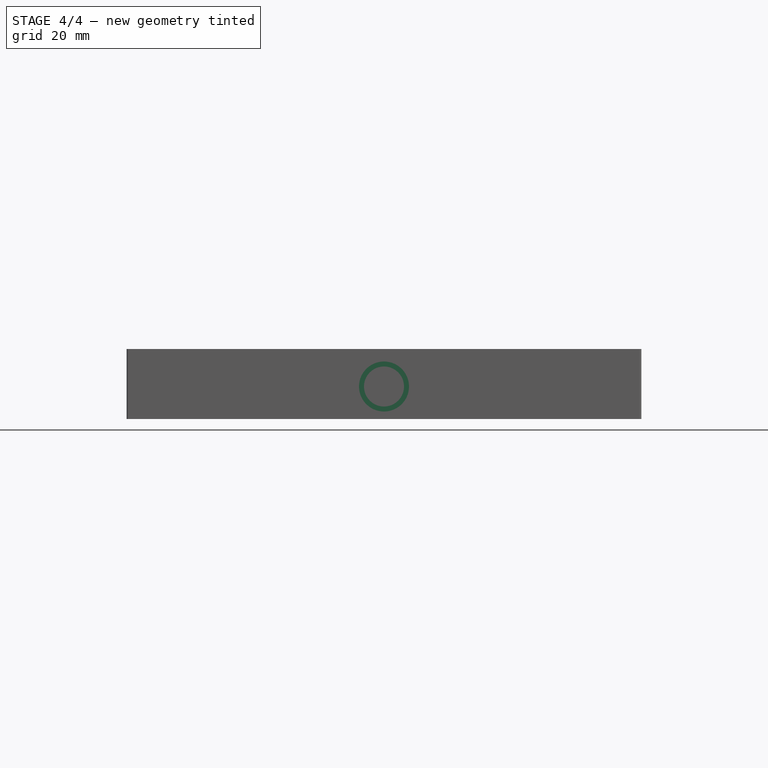
[diagram: stage 4 of 4 — front view after this stage's code; geometry added in this stage tinted green]
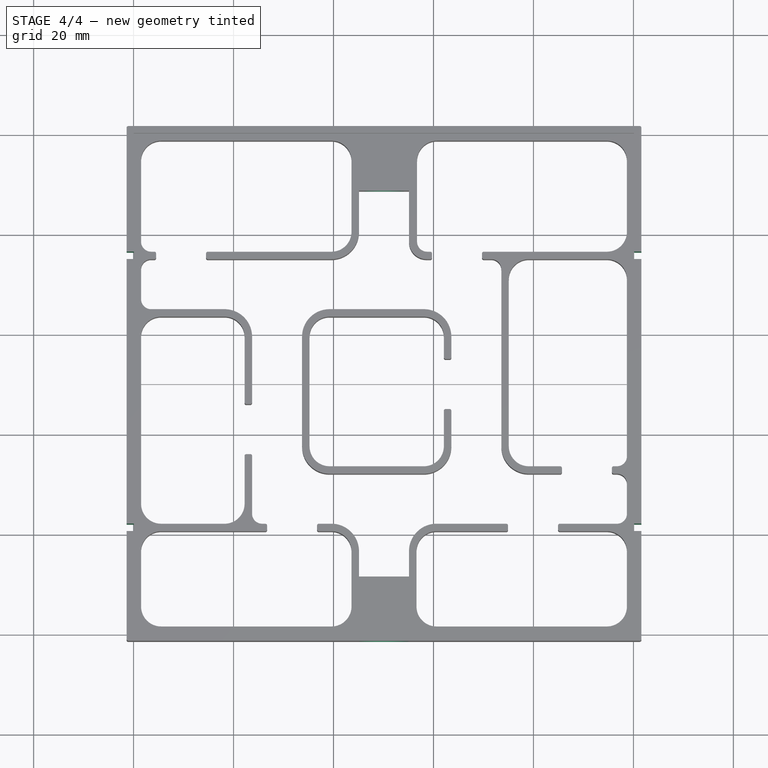
[diagram: stage 4 of 4 — top view after this stage's code; geometry added in this stage tinted green]
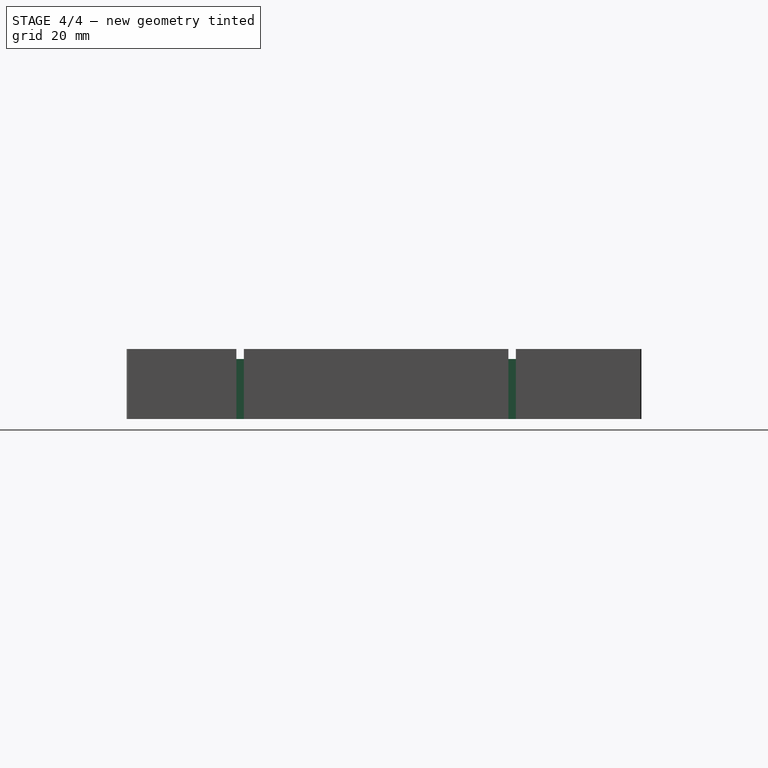
[diagram: stage 4 of 4 — right view after this stage's code; geometry added in this stage tinted green]
FEATURE [Sketcher::SketchObject] Sketch004
  ExternalGeometry = -> [Sketch003]
  MapMode = 5
  Placement = pos=(0,101.6,0) rot=(0,0.707107,0.707107;3.14159rad)
  Support = -> [Fillet004]
  sketch-geometry (4):
    g0: LineSegment [constr] StartX=-101.6 StartY=0 StartZ=0 EndX=-50.1 EndY=0 EndZ=0
    g1: LineSegment [constr] StartX=-50.1 StartY=0 StartZ=0 EndX=1.4 EndY=0 EndZ=0
    g2: LineSegment [constr] StartX=-50.1 StartY=0 StartZ=0 EndX=-50.1 EndY=6.5 EndZ=0
    g3: Circle CenterX=-50.1 CenterY=6.5 CenterZ=0 NormalX=0 NormalY=0 NormalZ=1 AngleXU=0 Radius=5
  constraints (10):
    c: Coincident(g0,g-3)
    c: Coincident(g1,g0)
    c: Coincident(g1,g-3)
    c: Equal(g0,g1)
    c: PointOnObject(g0,g-3)
    c: Coincident(g2,g0)
    c: Vertical(g2)
    c: Distance(g2) = 6.5
    c: Coincident(g3,g2)
    c: Radius(g3) = 5
FEATURE [PartDesign::Hole] Hole
  BaseFeature = -> Fillet004
  Depth = 25
  DepthType = 0
  Diameter = 8
  DrillPoint = 0
  DrillPointAngle = 118
  HoleCutCountersinkAngle = 90
  HoleCutDepth = 11
  HoleCutDiameter = 10
  HoleCutType = 1
  ModelActualThread = false
  Profile = -> Sketch004
  Tapered = false
  TaperedAngle = 90
  ThreadAngle = 0
  ThreadClass = 0
  ThreadCutOffInner = 0
  ThreadCutOffOuter = 0
  ThreadDirection = 0
  ThreadFit = 0
  ThreadPitch = 0
  ThreadSize = 0
  ThreadType = 0
  Threaded = false
FEATURE [Sketcher::SketchObject] Sketch005
  ExternalGeometry = -> [Sketch004]
  MapMode = 5
  Placement = pos=(0,-1.4,0) rot=(1,0,0;1.5708rad)
  Support = -> [Hole]
  sketch-geometry (1):
    g0: Circle CenterX=50.1 CenterY=6.5 CenterZ=0 NormalX=0 NormalY=0 NormalZ=1 AngleXU=0 Radius=2.16814
  constraints (1):
    c: Coincident(g0,g-3)
FEATURE [PartDesign::Hole] Hole001
  BaseFeature = -> Hole
  Depth = 25
  DepthType = 0
  Diameter = 8
  DrillPoint = 0
  DrillPointAngle = 118
  HoleCutCountersinkAngle = 90
  HoleCutDepth = 11
  HoleCutDiameter = 10
  HoleCutType = 1
  ModelActualThread = false
  Profile = -> Sketch005
  Tapered = false
  TaperedAngle = 90
  ThreadAngle = 0
  ThreadClass = 0
  ThreadCutOffInner = 0
  ThreadCutOffOuter = 0
  ThreadDirection = 0
  ThreadFit = 0
  ThreadPitch = 0
  ThreadSize = 0
  ThreadType = 0
  Threaded = false
FEATURE [Sketcher::SketchObject] Sketch006
  ExternalGeometry = -> [Sketch003,Sketch001]
  MapMode = 5
  Support = -> [XY_Plane]
  sketch-geometry (17):
    g0: LineSegment StartX=100.15 StartY=22.0565 StartZ=0 EndX=101.6 EndY=22.0565 EndZ=0
    g1: LineSegment StartX=101.6 StartY=22.0565 StartZ=0 EndX=101.6 EndY=20.5565 EndZ=0
    g2: LineSegment StartX=101.6 StartY=20.5565 StartZ=0 EndX=100.15 EndY=20.5565 EndZ=0
    g3: LineSegment StartX=100.15 StartY=20.5565 StartZ=0 EndX=100.15 EndY=22.0565 EndZ=0
    g4: LineSegment StartX=100.15 StartY=76.4876 StartZ=0 EndX=101.6 EndY=76.4876 EndZ=0
    g5: LineSegment StartX=101.6 StartY=76.4876 StartZ=0 EndX=101.6 EndY=74.9876 EndZ=0
    g6: LineSegment StartX=101.6 StartY=74.9876 StartZ=0 EndX=100.15 EndY=74.9876 EndZ=0
    g7: LineSegment StartX=100.15 StartY=74.9876 StartZ=0 EndX=100.15 EndY=76.4876 EndZ=0
    g8: LineSegment StartX=-1.4 StartY=76.4876 StartZ=0 EndX=0.05 EndY=76.4876 EndZ=0
    g9: LineSegment StartX=0.05 StartY=76.4876 StartZ=0 EndX=0.05 EndY=74.9876 EndZ=0
    g10: LineSegment StartX=0.05 StartY=74.9876 StartZ=0 EndX=-1.4 EndY=74.9876 EndZ=0
    g11: LineSegment StartX=-1.4 StartY=74.9876 StartZ=0 EndX=-1.4 EndY=76.4876 EndZ=0
    g12: LineSegment StartX=-1.4 StartY=22.0565 StartZ=0 EndX=0.05 EndY=22.0565 EndZ=0
    g13: LineSegment StartX=0.05 StartY=22.0565 StartZ=0 EndX=0.05 EndY=20.5565 EndZ=0
    g14: LineSegment StartX=0.05 StartY=20.5565 StartZ=0 EndX=-1.4 EndY=20.5565 EndZ=0
    g15: LineSegment StartX=-1.4 StartY=20.5565 StartZ=0 EndX=-1.4 EndY=22.0565 EndZ=0
    g16: LineSegment [constr] StartX=-1.4 StartY=20.5565 StartZ=0 EndX=-1.4 EndY=-1.4 EndZ=0
  constraints (51):
    c: Coincident(g0,g1)
    c: Coincident(g1,g2)
    c: Coincident(g2,g3)
    c: Coincident(g3,g0)
    c: Horizontal(g0)
    c: Horizontal(g2)
    c: Vertical(g1)
    c: Vertical(g3)
    c: Horizontal(g0,g-6)
    c: Horizontal(g2,g-7)
    c: PointOnObject(g0,g-9)
    c: PointOnObject(g1,g-8)
    c: Coincident(g4,g5)
    c: Coincident(g5,g6)
    c: Coincident(g6,g7)
    c: Coincident(g7,g4)
    c: Horizontal(g4)
    c: Horizontal(g6)
    c: Vertical(g5)
    c: Vertical(g7)
    c: Horizontal(g-4,g4)
    c: Horizontal(g6,g-5)
    c: PointOnObject(g4,g-9)
    c: PointOnObject(g5,g-8)
    c: Coincident(g8,g9)
    c: Coincident(g9,g10)
    c: Coincident(g10,g11)
    c: Coincident(g11,g8)
    c: Horizontal(g8)
    c: Horizontal(g10)
    c: Vertical(g9)
    c: Vertical(g11)
    c: Horizontal(g8,g-4)
    c: Horizontal(g9,g-5)
    c: PointOnObject(g9,g-10)
    c: PointOnObject(g10,g-3)
    c: Coincident(g12,g13)
    c: Coincident(g13,g14)
    c: Coincident(g14,g15)
    c: Coincident(g15,g12)
    c: Horizontal(g12)
    c: Horizontal(g14)
    c: Vertical(g13)
    c: Vertical(g15)
    c: Horizontal(g-6,g12)
    c: Horizontal(g13,g-7)
    c: PointOnObject(g13,g-10)
    c: PointOnObject(g14,g-3)
    c: Coincident(g16,g14)
    c: Distance(g16) = 21.9565
    c: Coincident(g16,g-3)
FEATURE [PartDesign::Pocket] Pocket
  BaseFeature = -> Hole001
  Length = 20
  Length2 = 100
  Profile = -> Sketch006
  Reversed = true
  Type = 0
FEATURE [PartDesign::Body] Body
  Group = -> [Sketch,Pad,Sketch001,Pad001,Sketch002,Pad002,Sketch003,Pad003,Fillet,Fillet001,Fillet002,Fillet003,Fillet004,Sketch004,Hole,Sketch005,Hole001,Sketch006,Pocket]
  Origin = -> Origin
  Tip = -> Pocket
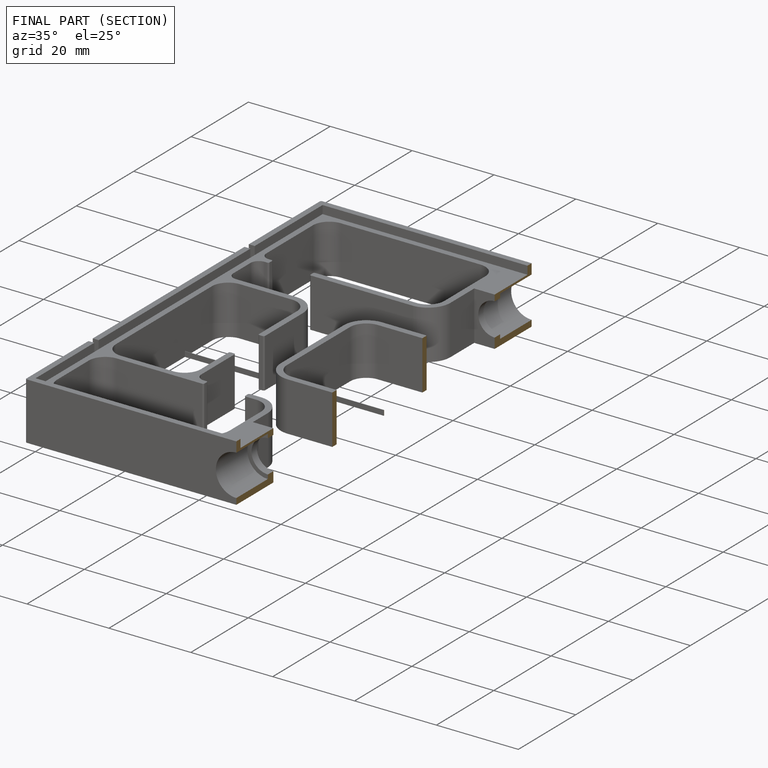
[diagram: finished part — half-section view (interior)]
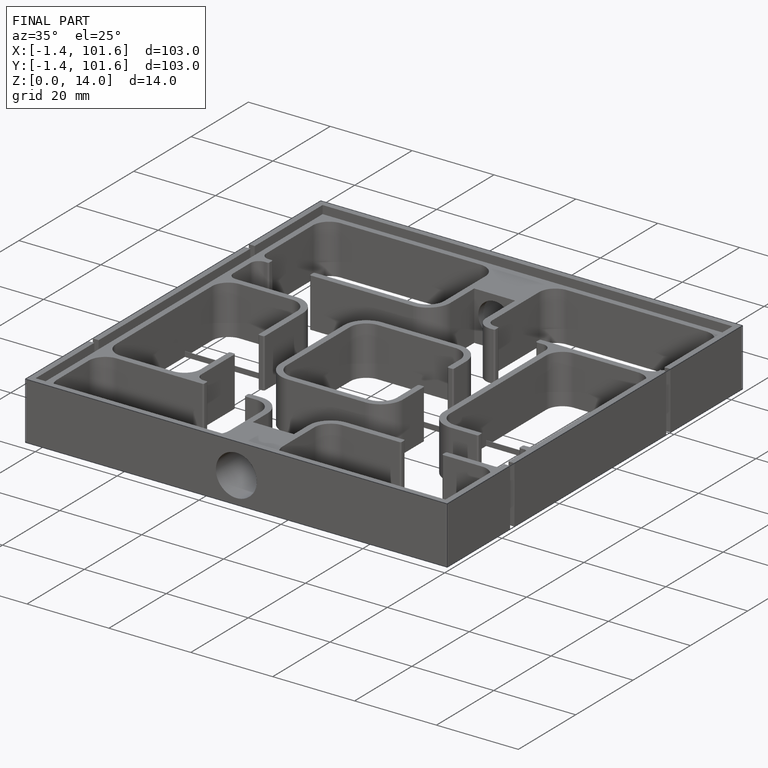
[diagram: finished part — iso view with bounding-box wireframe]
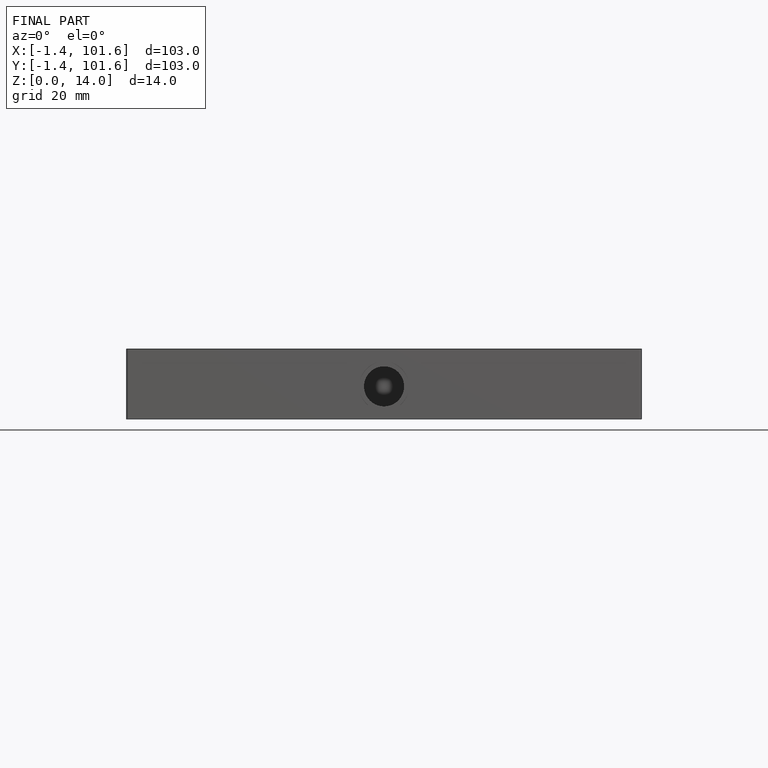
[diagram: finished part — front view with bounding-box wireframe]
